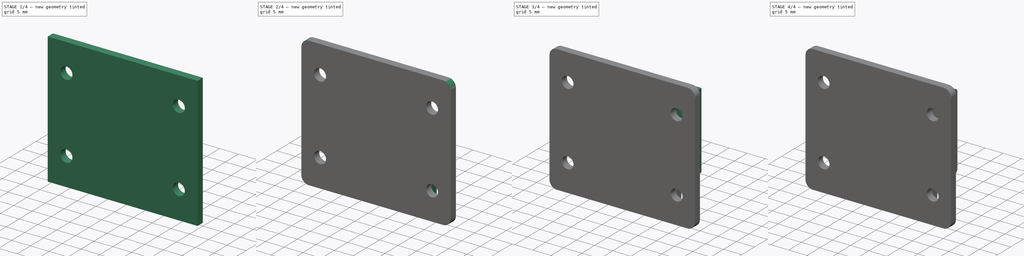
[diagram: build sequence overview — one tinted view per stage of 4, left to right]
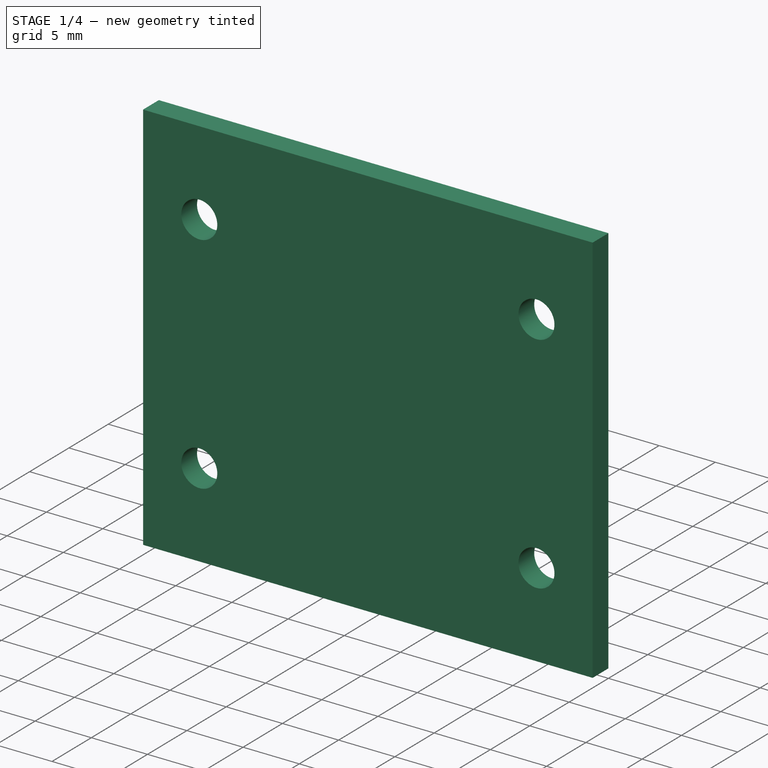
[diagram: stage 1 of 4 — iso view after this stage's code; geometry added in this stage tinted green]
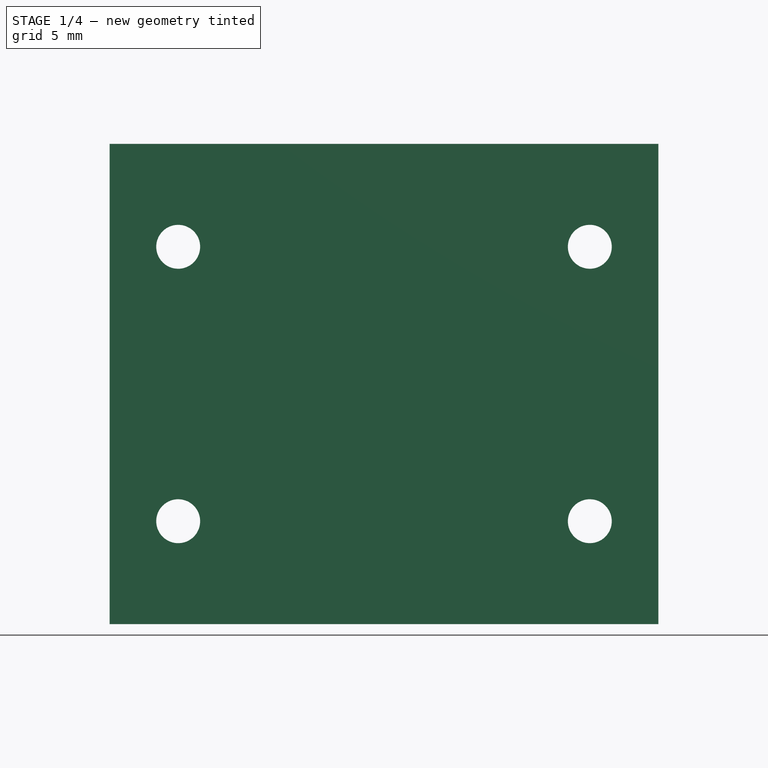
[diagram: stage 1 of 4 — front view after this stage's code; geometry added in this stage tinted green]
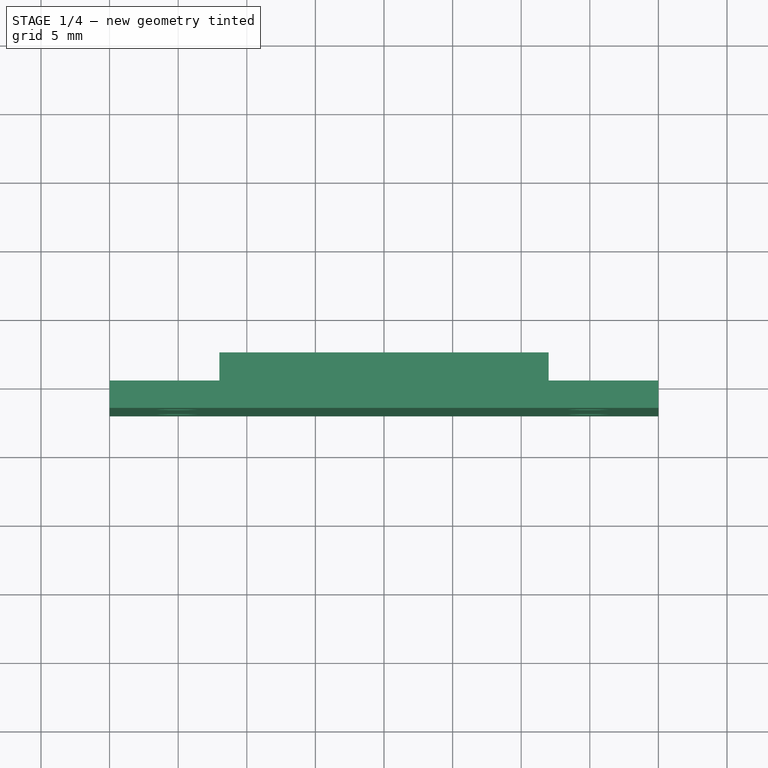
[diagram: stage 1 of 4 — top view after this stage's code; geometry added in this stage tinted green]
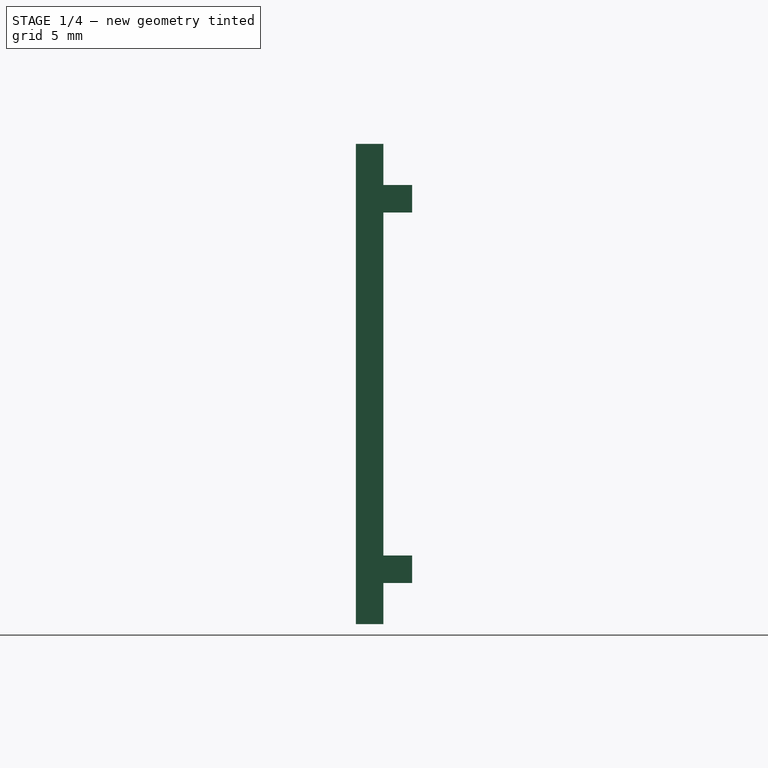
[diagram: stage 1 of 4 — right view after this stage's code; geometry added in this stage tinted green]
FCSTD DOCUMENT  (FreeCAD 0.22R38553 (Git))
Label: usbToTtlHolder
License: All rights reserved
LicenseURL: https://en.wikipedia.org/wiki/All_rights_reserved
objects: Sketcher::SketchObject×6, PartDesign::Pad×6, PartDesign::Fillet×4, PartDesign::Body×2, PartDesign::Plane×1
note: 45 computed .brp shape members not serialized (recipe doc carries the construction recipe); baked Part::Feature solids carry a one-line shape summary decoded from their .brp

FEATURE [Sketcher::SketchObject] Sketch
  ArcFitTolerance = 1e-06
  AttachmentSupport = -> [XZ_Plane]
  FullyConstrained = true
  MakeInternals = false
  MapMode = 5
  Placement = pos=(0,0,0) rot=(1,0,0;1.5708rad)
  sketch-geometry (9):
    g0: LineSegment StartX=-20 StartY=-17.5 StartZ=0 EndX=20 EndY=-17.5 EndZ=0
    g1: LineSegment StartX=20 StartY=-17.5 StartZ=0 EndX=20 EndY=17.5 EndZ=0
    g2: LineSegment StartX=20 StartY=17.5 StartZ=0 EndX=-20 EndY=17.5 EndZ=0
    g3: LineSegment StartX=-20 StartY=17.5 StartZ=0 EndX=-20 EndY=-17.5 EndZ=0
    g4: GeomPoint [constr] X=0 Y=0 Z=0
    g5: Circle CenterX=-15 CenterY=10 CenterZ=0 NormalX=0 NormalY=0 NormalZ=1 AngleXU=0 Radius=1.6
    g6: Circle CenterX=15 CenterY=10 CenterZ=0 NormalX=0 NormalY=0 NormalZ=1 AngleXU=0 Radius=1.6
    g7: Circle CenterX=15 CenterY=-10 CenterZ=0 NormalX=0 NormalY=0 NormalZ=1 AngleXU=0 Radius=1.6
    g8: Circle CenterX=-15 CenterY=-10 CenterZ=0 NormalX=0 NormalY=0 NormalZ=1 AngleXU=0 Radius=1.6
  constraints (22):
    c: Coincident(g0,g1)
    c: Coincident(g1,g2)
    c: Coincident(g2,g3)
    c: Coincident(g3,g0)
    c: Horizontal(g0)
    c: Horizontal(g2)
    c: Vertical(g1)
    c: Vertical(g3)
    c: Symmetric(g2,g0,g4)
    c: Coincident(g4,g-1)
    c: DistanceX(g0,g0) = 40
    c: DistanceY(g3,g3) = 35
    c: Equal(g7,g8)
    c: Equal(g8,g5)
    c: Equal(g5,g6)
    c: Diameter(g6) = 3.2
    c: Vertical(g8,g5)
    c: Horizontal(g8,g7)
    c: DistanceY(g7,g6) = 20
    c: Symmetric(g6,g5,g-2)
    c: Symmetric(g7,g6,g-1)
    c: DistanceX(g5,g6) = 30
FEATURE [PartDesign::Pad] Pad
  Direction = (0,-1,2e-16)
  Length = 2
  Length2 = 10
  Placement = pos=(0,0,0) rot=(1,0,0;1.5708rad)
  Profile = -> Sketch
  ReferenceAxis = -> Sketch [N_Axis]
  Suppressed = false
  Type = 0
FEATURE [Sketcher::SketchObject] Sketch003
  ArcFitTolerance = 1e-06
  AttachmentSupport = -> [Pad002]
  ExternalGeometry = -> [Pad002]
  FullyConstrained = true
  MakeInternals = false
  MapMode = 5
  Placement = pos=(0,0,-1.1e-15) rot=(1,0,0;1.5708rad)
  sketch-geometry (8):
    g0: LineSegment StartX=-12 StartY=10.5 StartZ=0 EndX=12 EndY=10.5 EndZ=0
    g1: LineSegment StartX=12 StartY=10.5 StartZ=0 EndX=12 EndY=12.5 EndZ=0
    g2: LineSegment StartX=12 StartY=12.5 StartZ=0 EndX=-12 EndY=12.5 EndZ=0
    g3: LineSegment StartX=-12 StartY=12.5 StartZ=0 EndX=-12 EndY=10.5 EndZ=0
    g4: LineSegment StartX=-12 StartY=-10.5 StartZ=0 EndX=-12 EndY=-12.5 EndZ=0
    g5: LineSegment StartX=-12 StartY=-12.5 StartZ=0 EndX=12 EndY=-12.5 EndZ=0
    g6: LineSegment StartX=12 StartY=-12.5 StartZ=0 EndX=12 EndY=-10.5 EndZ=0
    g7: LineSegment StartX=12 StartY=-10.5 StartZ=0 EndX=-12 EndY=-10.5 EndZ=0
  constraints (20):
    c: Coincident(g0,g1)
    c: Coincident(g1,g2)
    c: Coincident(g2,g3)
    c: Coincident(g3,g0)
    c: Horizontal(g2)
    c: Vertical(g1)
    c: Vertical(g3)
    c: Coincident(g0,g-3)
    c: Coincident(g4,g5)
    c: Coincident(g5,g6)
    c: Coincident(g6,g7)
    c: Coincident(g7,g4)
    c: Vertical(g4)
    c: Vertical(g6)
    c: Horizontal(g5)
    c: Coincident(g4,g-4)
    c: Coincident(g6,g-4)
    c: Coincident(g0,g-3)
    c: DistanceY(g1,g1) = 2
    c: Equal(g1,g6)
FEATURE [Sketcher::SketchObject] Sketch004
  ArcFitTolerance = 1e-06
  AttachmentSupport = -> [Pad]
  FullyConstrained = true
  MakeInternals = false
  MapMode = 5
  Placement = pos=(0,0,0) rot=(-1,0,0;1.5708rad)
  sketch-geometry (8):
    g0: LineSegment StartX=-12 StartY=14.5 StartZ=0 EndX=-12 EndY=12.5 EndZ=0
    g1: LineSegment StartX=-12 StartY=12.5 StartZ=0 EndX=12 EndY=12.5 EndZ=0
    g2: LineSegment StartX=12 StartY=12.5 StartZ=0 EndX=12 EndY=14.5 EndZ=0
    g3: LineSegment StartX=12 StartY=14.5 StartZ=0 EndX=-12 EndY=14.5 EndZ=0
    g4: LineSegment StartX=-12 StartY=-12.5 StartZ=0 EndX=-12 EndY=-14.5 EndZ=0
    g5: LineSegment StartX=-12 StartY=-14.5 StartZ=0 EndX=12 EndY=-14.5 EndZ=0
    g6: LineSegment StartX=12 StartY=-14.5 StartZ=0 EndX=12 EndY=-12.5 EndZ=0
    g7: LineSegment StartX=12 StartY=-12.5 StartZ=0 EndX=-12 EndY=-12.5 EndZ=0
  constraints (21):
    c: Coincident(g0,g1)
    c: Coincident(g1,g2)
    c: Coincident(g2,g3)
    c: Coincident(g3,g0)
    c: Vertical(g0)
    c: Vertical(g2)
    c: Horizontal(g1)
    c: Coincident(g4,g5)
    c: Coincident(g5,g6)
    c: Coincident(g6,g7)
    c: Coincident(g7,g4)
    c: Vertical(g4)
    c: Vertical(g6)
    c: Horizontal(g7)
    c: DistanceY(g6,g1) = 25
    c: Symmetric(g6,g1,g-1)
    c: Symmetric(g4,g5,g-2)
    c: Symmetric(g2,g0,g-2)
    c: DistanceX(g3,g3) = 24
    c: DistanceY(g6,g6) = 2
    c: Equal(g6,g2)
FEATURE [PartDesign::Pad] Pad003
  BaseFeature = -> Pad
  Direction = (0,1,2e-16)
  Length = 2.1
  Length2 = 10
  Placement = pos=(0,0,0) rot=(1,0,0;1.5708rad)
  Profile = -> Sketch004
  ReferenceAxis = -> Sketch004 [N_Axis]
  Suppressed = false
  Type = 0
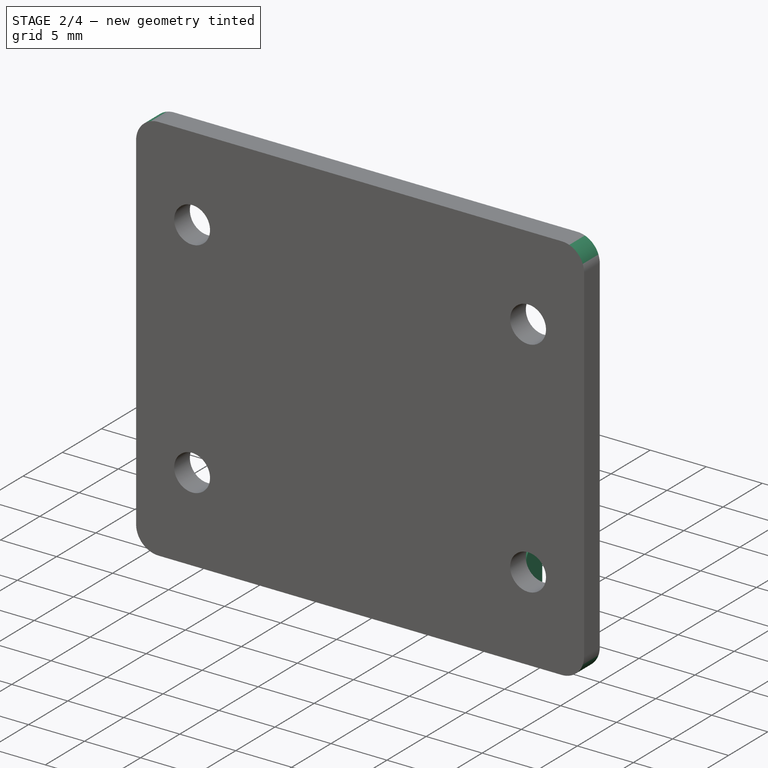
[diagram: stage 2 of 4 — iso view after this stage's code; geometry added in this stage tinted green]
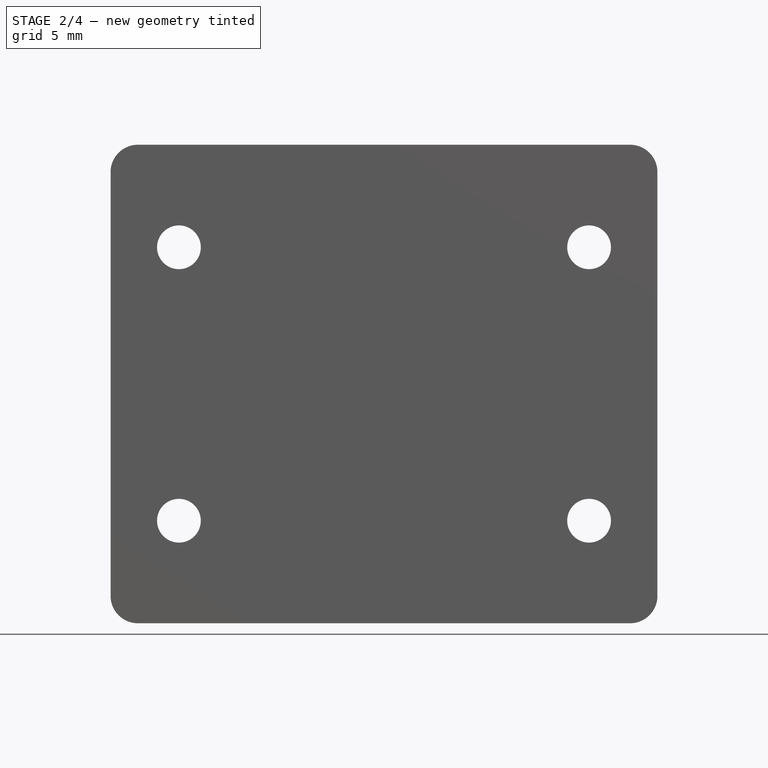
[diagram: stage 2 of 4 — front view after this stage's code; geometry added in this stage tinted green]
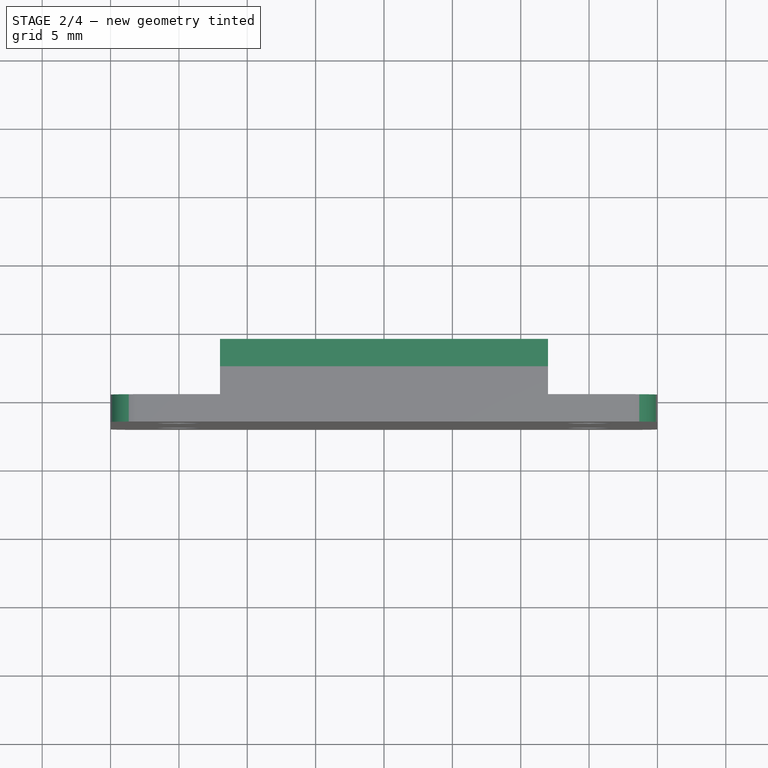
[diagram: stage 2 of 4 — top view after this stage's code; geometry added in this stage tinted green]
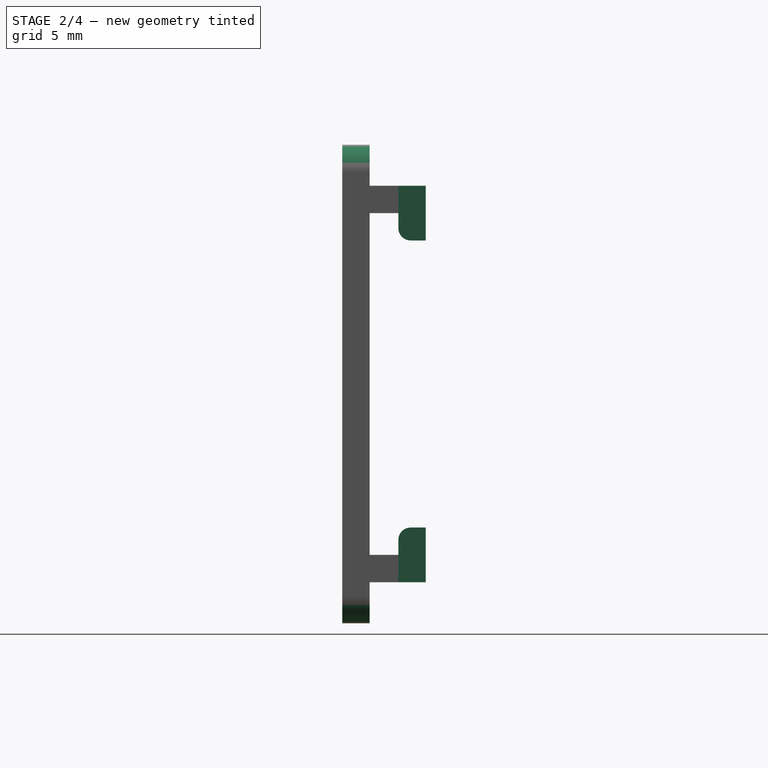
[diagram: stage 2 of 4 — right view after this stage's code; geometry added in this stage tinted green]
FEATURE [Sketcher::SketchObject] Sketch005
  ArcFitTolerance = 1e-06
  AttachmentSupport = -> [Pad003]
  ExternalGeometry = -> [Pad003]
  FullyConstrained = true
  MakeInternals = false
  MapMode = 5
  Placement = pos=(0,2.1,0) rot=(-1,0,0;1.5708rad)
  sketch-geometry (8):
    g0: LineSegment StartX=-12 StartY=-14.5 StartZ=0 EndX=12 EndY=-14.5 EndZ=0
    g1: LineSegment StartX=12 StartY=-14.5 StartZ=0 EndX=12 EndY=-10.5 EndZ=0
    g2: LineSegment StartX=12 StartY=-10.5 StartZ=0 EndX=-12 EndY=-10.5 EndZ=0
    g3: LineSegment StartX=-12 StartY=-10.5 StartZ=0 EndX=-12 EndY=-14.5 EndZ=0
    g4: LineSegment StartX=-12 StartY=14.5 StartZ=0 EndX=-12 EndY=10.5 EndZ=0
    g5: LineSegment StartX=-12 StartY=10.5 StartZ=0 EndX=12 EndY=10.5 EndZ=0
    g6: LineSegment StartX=12 StartY=10.5 StartZ=0 EndX=12 EndY=14.5 EndZ=0
    g7: LineSegment StartX=12 StartY=14.5 StartZ=0 EndX=-12 EndY=14.5 EndZ=0
  constraints (20):
    c: Coincident(g0,g1)
    c: Coincident(g1,g2)
    c: Coincident(g2,g3)
    c: Coincident(g3,g0)
    c: Horizontal(g2)
    c: Vertical(g1)
    c: Vertical(g3)
    c: Coincident(g0,g-4)
    c: Coincident(g4,g5)
    c: Coincident(g5,g6)
    c: Coincident(g6,g7)
    c: Coincident(g7,g4)
    c: Vertical(g4)
    c: Vertical(g6)
    c: Horizontal(g5)
    c: Coincident(g4,g-3)
    c: Coincident(g6,g-3)
    c: Coincident(g0,g-4)
    c: Equal(g1,g6)
    c: DistanceY(g6,g6) = 4
FEATURE [PartDesign::Pad] Pad005
  BaseFeature = -> Pad003
  Direction = (0,1,2e-16)
  Length = 2
  Length2 = 10
  Placement = pos=(0,0,0) rot=(1,0,0;1.5708rad)
  Profile = -> Sketch005
  ReferenceAxis = -> Sketch005 [N_Axis]
  Suppressed = false
  Type = 0
FEATURE [PartDesign::Fillet] Fillet
  Base = -> Pad005 [Edge5,Edge1,Edge2,Edge8]
  BaseFeature = -> Pad005
  Placement = pos=(0,0,0) rot=(1,0,0;1.5708rad)
  Radius = 2
  SupportTransform = false
  Suppressed = false
  UseAllEdges = false
FEATURE [PartDesign::Body] Body001  label="cap"
  AllowCompound = false
  Group = -> [DatumPlane,Sketch001,Pad001,Sketch002,Pad002,Sketch003,Pad004,Fillet001]
  Origin = -> Origin001
  Tip = -> Fillet001
FEATURE [PartDesign::Fillet] Fillet002
  Base = -> Fillet [Edge66,Edge80]
  BaseFeature = -> Fillet
  Placement = pos=(0,0,0) rot=(1,0,0;1.5708rad)
  Radius = 0.9
  SupportTransform = false
  Suppressed = false
  UseAllEdges = false
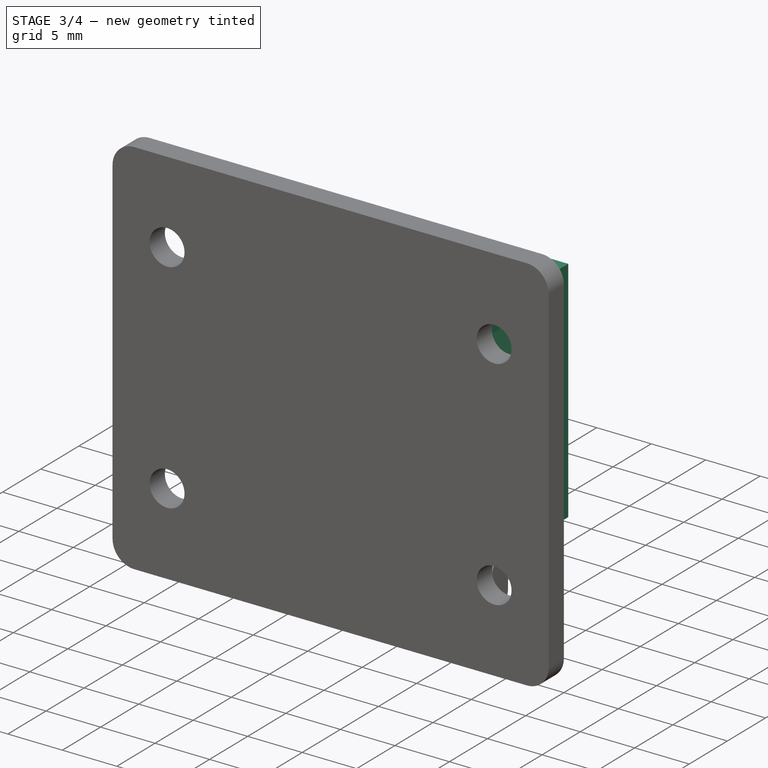
[diagram: stage 3 of 4 — iso view after this stage's code; geometry added in this stage tinted green]
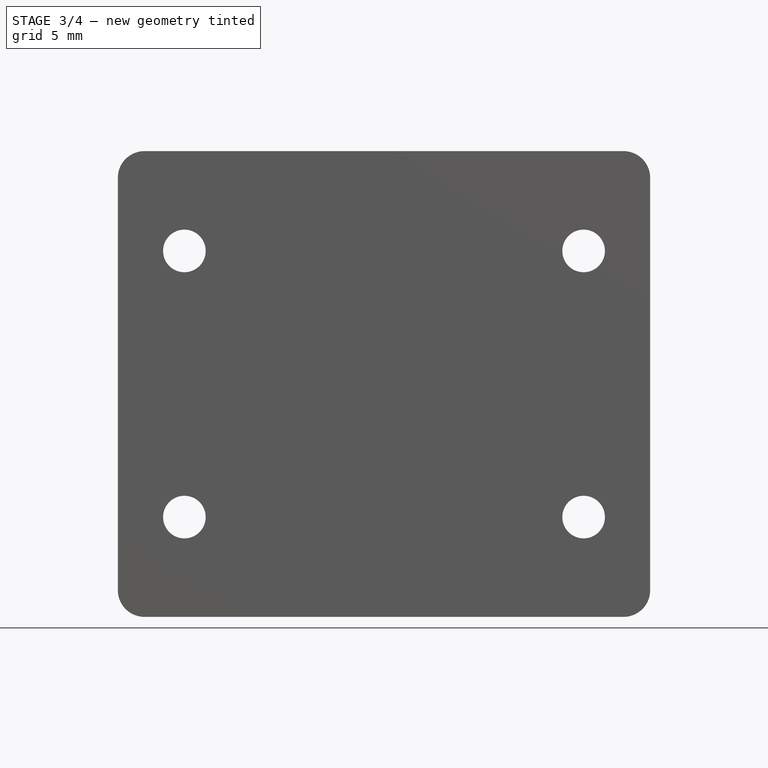
[diagram: stage 3 of 4 — front view after this stage's code; geometry added in this stage tinted green]
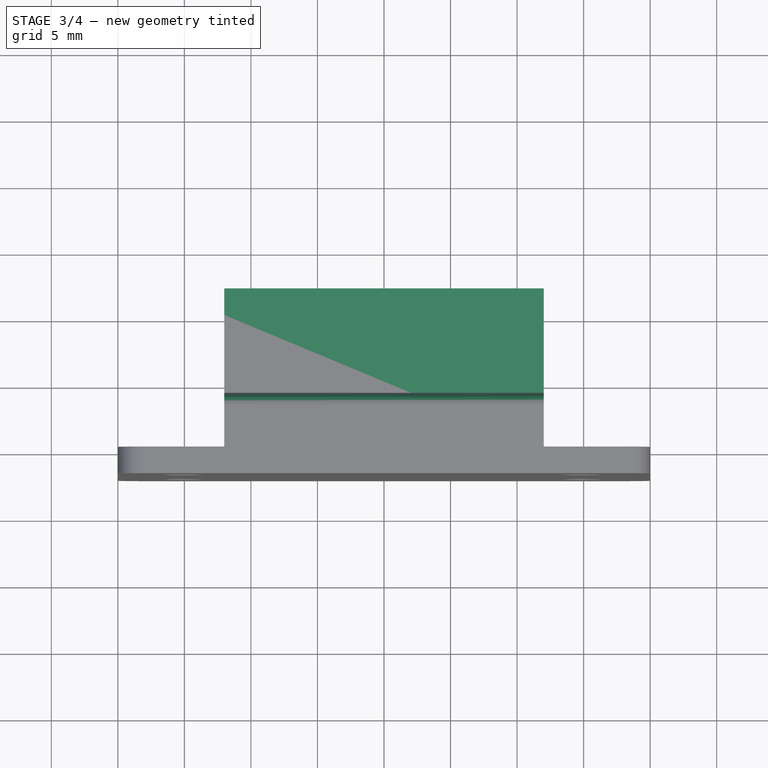
[diagram: stage 3 of 4 — top view after this stage's code; geometry added in this stage tinted green]
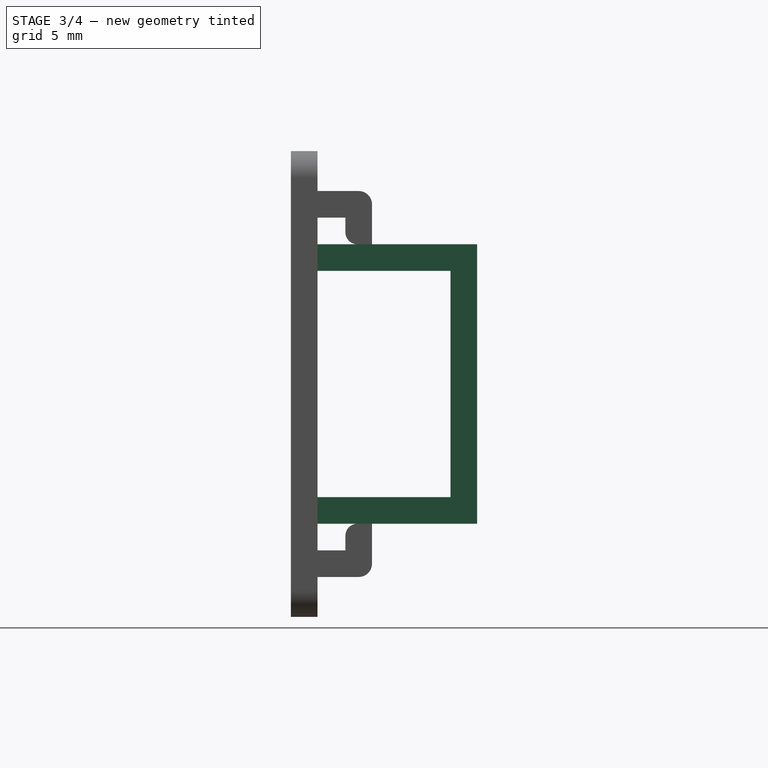
[diagram: stage 3 of 4 — right view after this stage's code; geometry added in this stage tinted green]
FEATURE [PartDesign::Plane] DatumPlane
  AttachmentOffset = pos=(0,0,-10) rot=(0,0,1;0rad)
  AttachmentSupport = -> [XZ_Plane001]
  Length = 60
  Placement = pos=(0,10,-2.2e-15) rot=(1,0,0;1.5708rad)
  ResizeMode = 0
  Width = 60
FEATURE [Sketcher::SketchObject] Sketch001
  ArcFitTolerance = 1e-06
  AttachmentSupport = -> [DatumPlane]
  FullyConstrained = true
  MakeInternals = false
  MapMode = 5
  Placement = pos=(0,10,-2.2e-15) rot=(1,0,0;1.5708rad)
  sketch-geometry (5):
    g0: LineSegment StartX=-12 StartY=-10.5 StartZ=0 EndX=12 EndY=-10.5 EndZ=0
    g1: LineSegment StartX=12 StartY=-10.5 StartZ=0 EndX=12 EndY=10.5 EndZ=0
    g2: LineSegment StartX=12 StartY=10.5 StartZ=0 EndX=-12 EndY=10.5 EndZ=0
    g3: LineSegment StartX=-12 StartY=10.5 StartZ=0 EndX=-12 EndY=-10.5 EndZ=0
    g4: GeomPoint [constr] X=0 Y=0 Z=0
  constraints (12):
    c: Coincident(g0,g1)
    c: Coincident(g1,g2)
    c: Coincident(g2,g3)
    c: Coincident(g3,g0)
    c: Horizontal(g0)
    c: Horizontal(g2)
    c: Vertical(g1)
    c: Vertical(g3)
    c: Symmetric(g2,g0,g4)
    c: Distance(g1,g3) = 24
    c: Coincident(g4,g-1)
    c: DistanceY(g3,g3) = 21
FEATURE [PartDesign::Pad] Pad001
  Direction = (0,-1,2e-16)
  Length = 2
  Length2 = 10
  Placement = pos=(0,10,-2.2e-15) rot=(1,0,0;1.5708rad)
  Profile = -> Sketch001
  ReferenceAxis = -> Sketch001 [N_Axis]
  Reversed = true
  Suppressed = false
  Type = 0
FEATURE [Sketcher::SketchObject] Sketch002
  ArcFitTolerance = 1e-06
  AttachmentSupport = -> [Pad001]
  ExternalGeometry = -> [Pad001]
  FullyConstrained = true
  MakeInternals = false
  MapMode = 5
  Placement = pos=(0,10,-2.2e-15) rot=(1,0,0;1.5708rad)
  sketch-geometry (8):
    g0: LineSegment StartX=-12 StartY=-10.5 StartZ=0 EndX=12 EndY=-10.5 EndZ=0
    g1: LineSegment StartX=12 StartY=-10.5 StartZ=0 EndX=12 EndY=-8.5 EndZ=0
    g2: LineSegment StartX=12 StartY=-8.5 StartZ=0 EndX=-12 EndY=-8.5 EndZ=0
    g3: LineSegment StartX=-12 StartY=-8.5 StartZ=0 EndX=-12 EndY=-10.5 EndZ=0
    g4: LineSegment StartX=12 StartY=10.5 StartZ=0 EndX=-12 EndY=10.5 EndZ=0
    g5: LineSegment StartX=-12 StartY=10.5 StartZ=0 EndX=-12 EndY=8.5 EndZ=0
    g6: LineSegment StartX=-12 StartY=8.5 StartZ=0 EndX=12 EndY=8.5 EndZ=0
    g7: LineSegment StartX=12 StartY=8.5 StartZ=0 EndX=12 EndY=10.5 EndZ=0
  constraints (20):
    c: Coincident(g0,g1)
    c: Coincident(g1,g2)
    c: Coincident(g2,g3)
    c: Coincident(g3,g0)
    c: Horizontal(g2)
    c: Vertical(g1)
    c: Vertical(g3)
    c: Coincident(g0,g-4)
    c: Coincident(g4,g5)
    c: Coincident(g5,g6)
    c: Coincident(g6,g7)
    c: Coincident(g7,g4)
    c: Horizontal(g6)
    c: Vertical(g5)
    c: Vertical(g7)
    c: Coincident(g4,g-3)
    c: Coincident(g4,g-3)
    c: Coincident(g-4,g0)
    c: DistanceY(g1,g1) = 2
    c: DistanceY(g7,g7) = 2
FEATURE [PartDesign::Pad] Pad002
  BaseFeature = -> Pad001
  Direction = (0,-1,2e-16)
  Length = 10
  Length2 = 10
  Placement = pos=(0,10,-2.2e-15) rot=(1,0,0;1.5708rad)
  Profile = -> Sketch002
  ReferenceAxis = -> Sketch002 [N_Axis]
  Suppressed = false
  Type = 0
FEATURE [PartDesign::Fillet] Fillet003
  Base = -> Fillet002 [Edge13,Edge81]
  BaseFeature = -> Fillet002
  Placement = pos=(0,0,0) rot=(1,0,0;1.5708rad)
  Radius = 1
  SupportTransform = false
  Suppressed = false
  UseAllEdges = false
FEATURE [PartDesign::Body] Body  label="base"
  AllowCompound = false
  Group = -> [Sketch,Pad,Sketch004,Pad003,Sketch005,Pad005,Fillet,Fillet002,Fillet003]
  Origin = -> Origin
  Tip = -> Fillet003
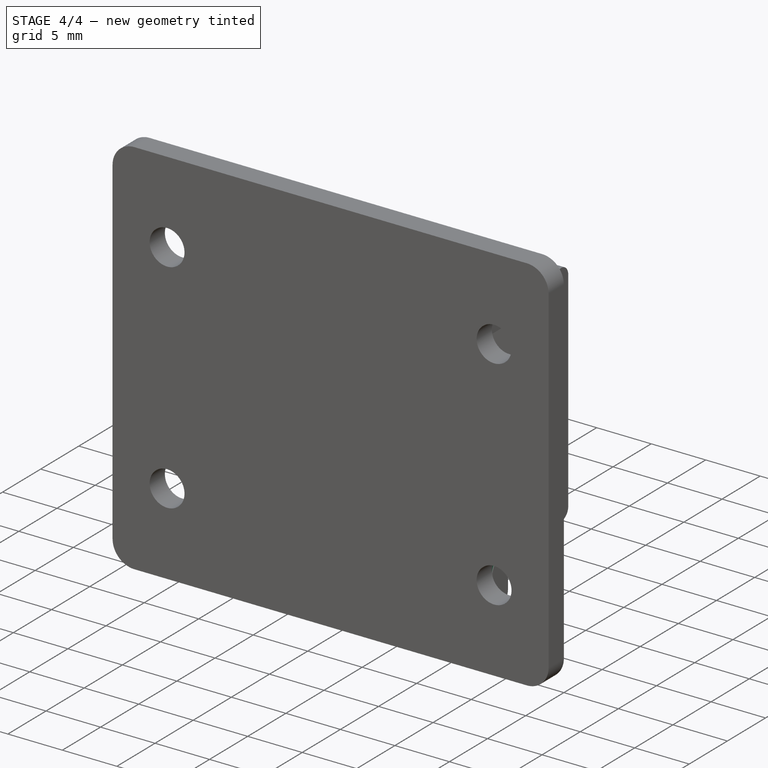
[diagram: stage 4 of 4 — iso view after this stage's code; geometry added in this stage tinted green]
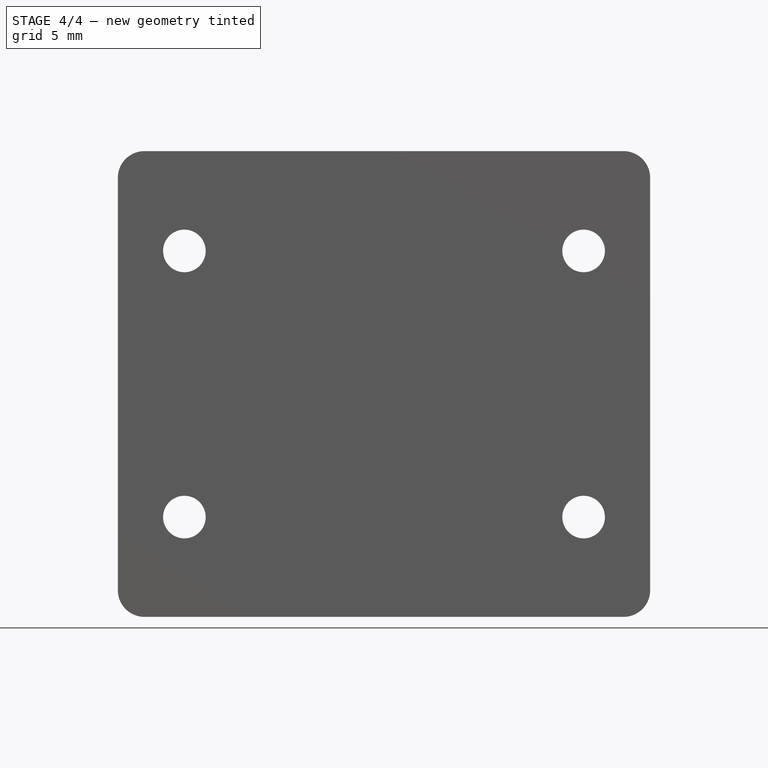
[diagram: stage 4 of 4 — front view after this stage's code; geometry added in this stage tinted green]
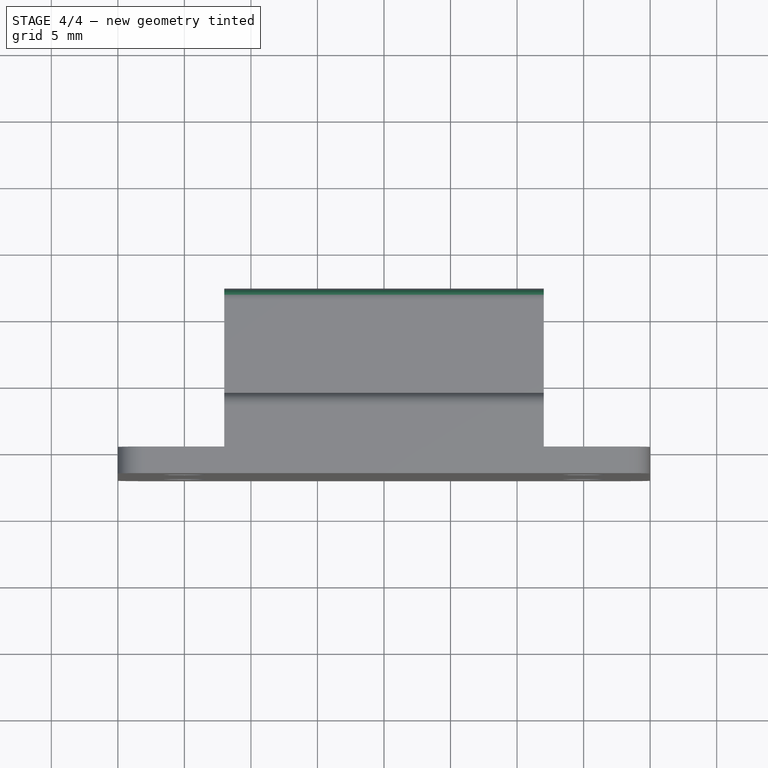
[diagram: stage 4 of 4 — top view after this stage's code; geometry added in this stage tinted green]
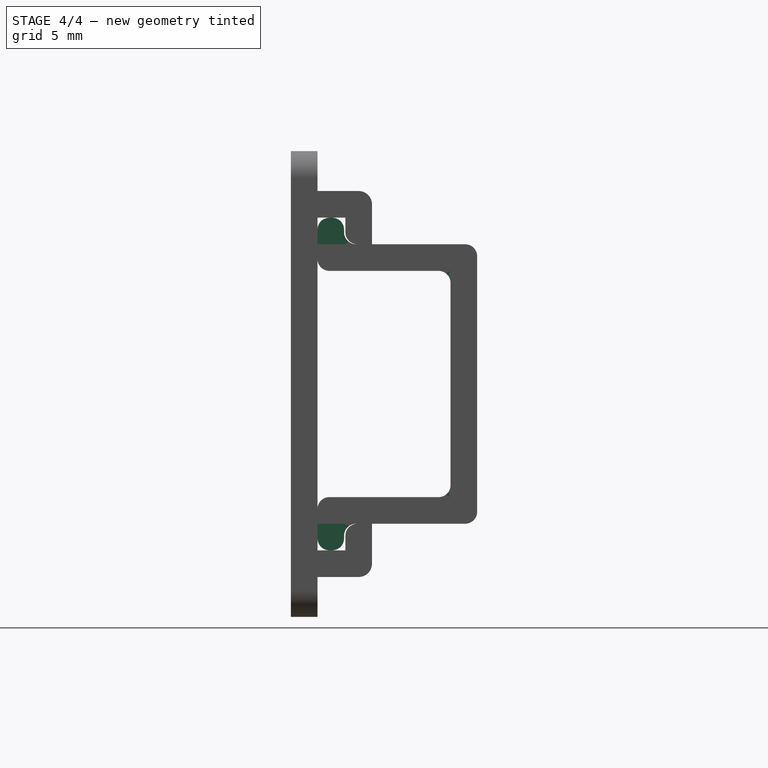
[diagram: stage 4 of 4 — right view after this stage's code; geometry added in this stage tinted green]
FEATURE [PartDesign::Pad] Pad004
  BaseFeature = -> Pad002
  Direction = (0,-1,2e-16)
  Length = 2
  Length2 = 10
  Placement = pos=(0,10,-2.2e-15) rot=(1,0,0;1.5708rad)
  Profile = -> Sketch003
  ReferenceAxis = -> Sketch003 [N_Axis]
  Reversed = true
  Suppressed = false
  Type = 0
FEATURE [PartDesign::Fillet] Fillet001
  Base = -> Pad004 [Edge45,Edge43,Edge25,Edge24,Edge4,Edge18,Edge39,Edge16,Edge37,Edge54,Edge55,Edge56]
  BaseFeature = -> Pad004
  Placement = pos=(0,10,-2.2e-15) rot=(1,0,0;1.5708rad)
  Radius = 0.9
  SupportTransform = false
  Suppressed = false
  UseAllEdges = false
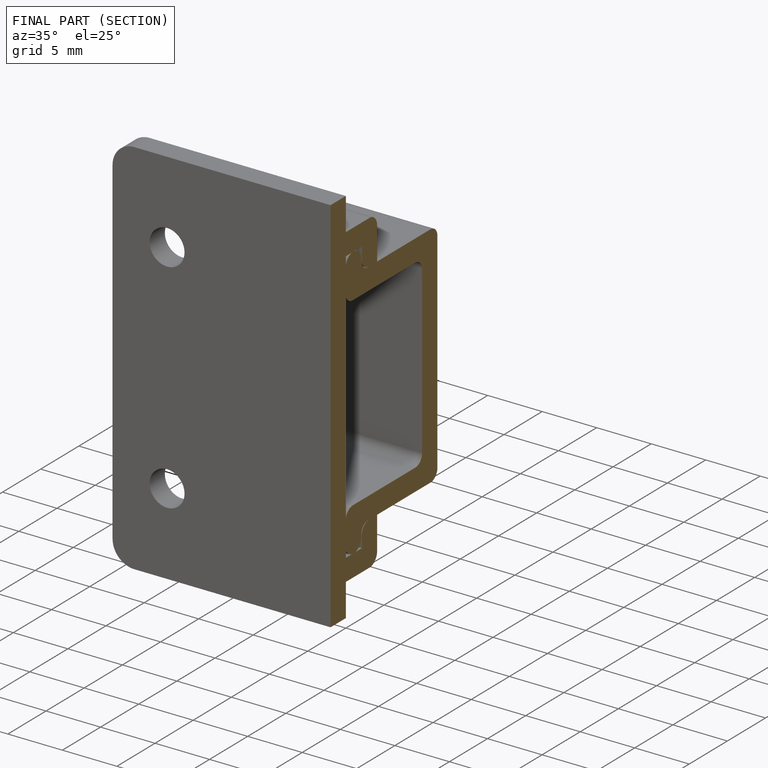
[diagram: finished part — half-section view (interior)]
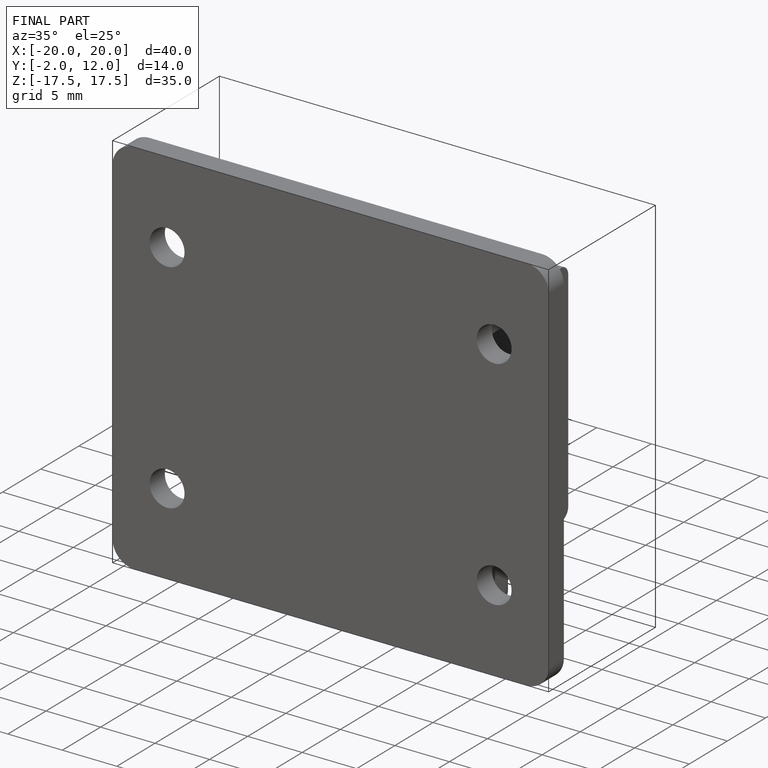
[diagram: finished part — iso view with bounding-box wireframe]
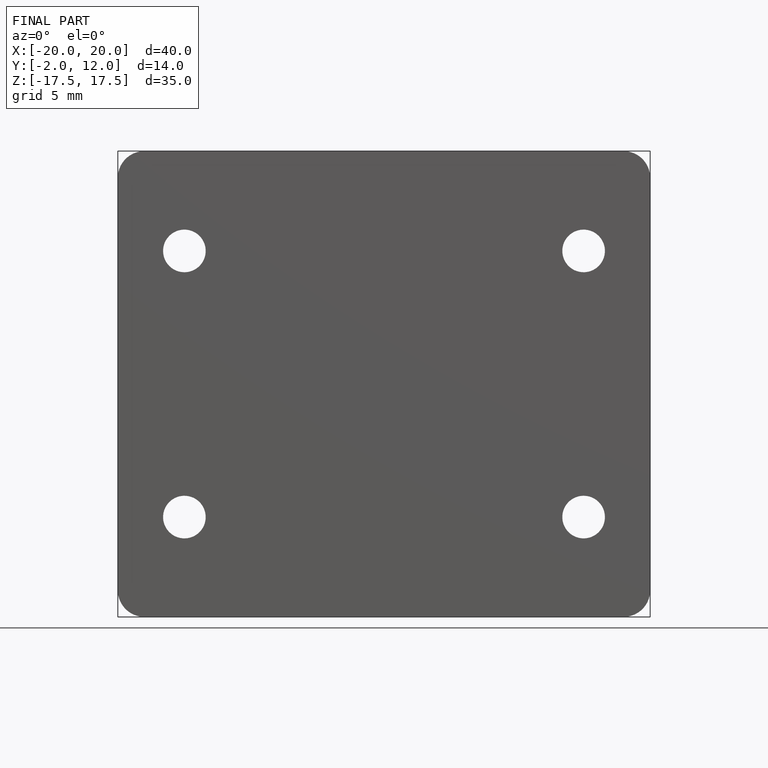
[diagram: finished part — front view with bounding-box wireframe]
